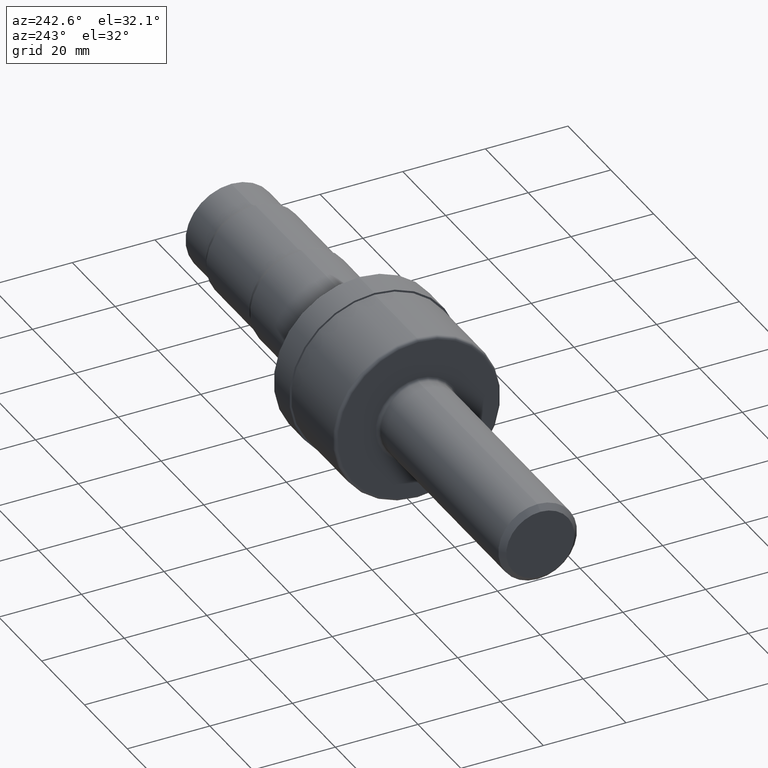
[diagram: clean part render]
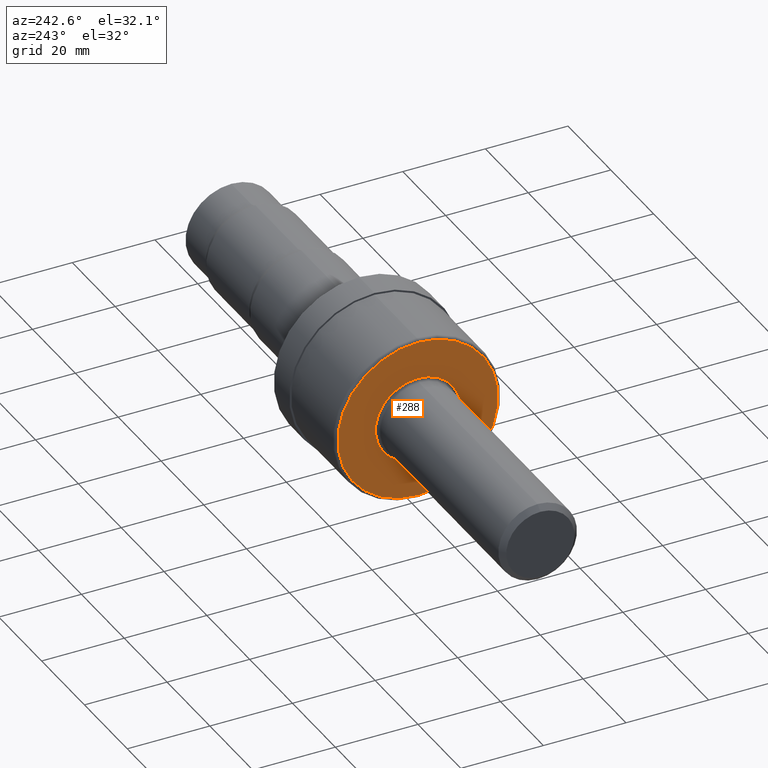
[diagram: same view with one face highlighted and labeled with its STEP entity id]
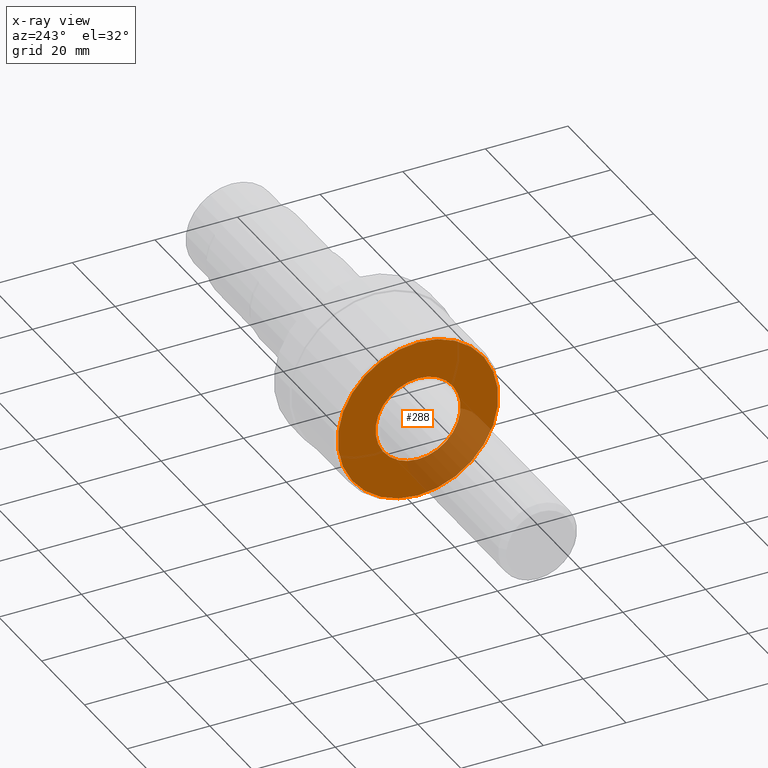
[diagram: x-ray of the same camera — body ghosted, the highlighted face saturated]
A machine part, auxiliary view. The second image highlights one B-rep face of the part: STEP entity #288.
The next image is the same camera in x-ray: the body ghosted, the highlighted face saturated — about 22% of this face is hidden behind the body in this view.
In plain terms, the highlighted planar face has unit normal (1, 0, 0).
Its self-contained STEP definition (entity closure, byte-faithful):
#3 = ORIENTED_EDGE ( 'NONE', *, *, #651, .F. ) ;
#14 = CIRCLE ( 'NONE', #391, 0.7650000000000000133 ) ;
#18 = CARTESIAN_POINT ( 'NONE',  ( 2.250000000000000000, 0.0000000000000000000, 0.0000000000000000000 ) ) ;
#35 = DIRECTION ( 'NONE',  ( 0.0000000000000000000, 0.0000000000000000000, 1.000000000000000000 ) ) ;
#37 = CARTESIAN_POINT ( 'NONE',  ( 2.250000000000000000, 0.0000000000000000000, 0.4048500000000005983 ) ) ;
#51 = DIRECTION ( 'NONE',  ( -1.000000000000000000, -0.0000000000000000000, -0.0000000000000000000 ) ) ;
#94 = DIRECTION ( 'NONE',  ( -1.000000000000000000, -0.0000000000000000000, -0.0000000000000000000 ) ) ;
#112 = CARTESIAN_POINT ( 'NONE',  ( 2.250000000000000000, 0.0000000000000000000, 0.0000000000000000000 ) ) ;
#120 = PLANE ( 'NONE',  #336 ) ;
#138 = VERTEX_POINT ( 'NONE', #483 ) ;
#177 = DIRECTION ( 'NONE',  ( -1.000000000000000000, -0.0000000000000000000, -0.0000000000000000000 ) ) ;
#181 = CIRCLE ( 'NONE', #788, 0.4048500000000005983 ) ;
#182 = DIRECTION ( 'NONE',  ( 1.000000000000000000, 0.0000000000000000000, 0.0000000000000000000 ) ) ;
#197 = VERTEX_POINT ( 'NONE', #799 ) ;
#211 = EDGE_CURVE ( 'NONE', #197, #445, #14, .T. ) ;
#255 = CARTESIAN_POINT ( 'NONE',  ( 2.250000000000000000, 0.7650000000000000133, 0.0000000000000000000 ) ) ;
#276 = ORIENTED_EDGE ( 'NONE', *, *, #211, .T. ) ;
#288 = ADVANCED_FACE ( 'NONE', ( #507, #918 ), #120, .F. ) ;
#311 = VERTEX_POINT ( 'NONE', #37 ) ;
#336 = AXIS2_PLACEMENT_3D ( 'NONE', #255, #182, #611 ) ;
#338 = CARTESIAN_POINT ( 'NONE',  ( 2.250000000000000000, 0.0000000000000000000, 0.0000000000000000000 ) ) ;
#391 = AXIS2_PLACEMENT_3D ( 'NONE', #616, #177, #473 ) ;
#409 = CIRCLE ( 'NONE', #696, 0.7650000000000000133 ) ;
#430 = CARTESIAN_POINT ( 'NONE',  ( 2.250000000000000000, 0.0000000000000000000, 0.7650000000000000133 ) ) ;
#445 = VERTEX_POINT ( 'NONE', #430 ) ;
#473 = DIRECTION ( 'NONE',  ( 0.0000000000000000000, 0.0000000000000000000, 1.000000000000000000 ) ) ;
#483 = CARTESIAN_POINT ( 'NONE',  ( 2.250000000000000000, 4.957982566348066292E-17, -0.4048500000000005983 ) ) ;
#507 = FACE_BOUND ( 'NONE', #600, .T. ) ;
#530 = DIRECTION ( 'NONE',  ( 0.0000000000000000000, 0.0000000000000000000, 1.000000000000000000 ) ) ;
#600 = EDGE_LOOP ( 'NONE', ( #3, #797 ) ) ;
#610 = DIRECTION ( 'NONE',  ( -1.000000000000000000, -0.0000000000000000000, -0.0000000000000000000 ) ) ;
#611 = DIRECTION ( 'NONE',  ( 0.0000000000000000000, 0.0000000000000000000, -1.000000000000000000 ) ) ;
#616 = CARTESIAN_POINT ( 'NONE',  ( 2.250000000000000000, 0.0000000000000000000, 0.0000000000000000000 ) ) ;
#651 = EDGE_CURVE ( 'NONE', #311, #138, #901, .T. ) ;
#696 = AXIS2_PLACEMENT_3D ( 'NONE', #112, #51, #35 ) ;
#739 = EDGE_LOOP ( 'NONE', ( #898, #276 ) ) ;
#776 = EDGE_CURVE ( 'NONE', #138, #311, #181, .T. ) ;
#788 = AXIS2_PLACEMENT_3D ( 'NONE', #18, #94, #530 ) ;
#797 = ORIENTED_EDGE ( 'NONE', *, *, #776, .F. ) ;
#799 = CARTESIAN_POINT ( 'NONE',  ( 2.250000000000000000, 9.552245033349356051E-17, -0.7650000000000000133 ) ) ;
#882 = DIRECTION ( 'NONE',  ( 0.0000000000000000000, 0.0000000000000000000, 1.000000000000000000 ) ) ;
#898 = ORIENTED_EDGE ( 'NONE', *, *, #966, .T. ) ;
#901 = CIRCLE ( 'NONE', #938, 0.4048500000000005983 ) ;
#918 = FACE_OUTER_BOUND ( 'NONE', #739, .T. ) ;
#938 = AXIS2_PLACEMENT_3D ( 'NONE', #338, #610, #882 ) ;
#966 = EDGE_CURVE ( 'NONE', #445, #197, #409, .T. ) ;